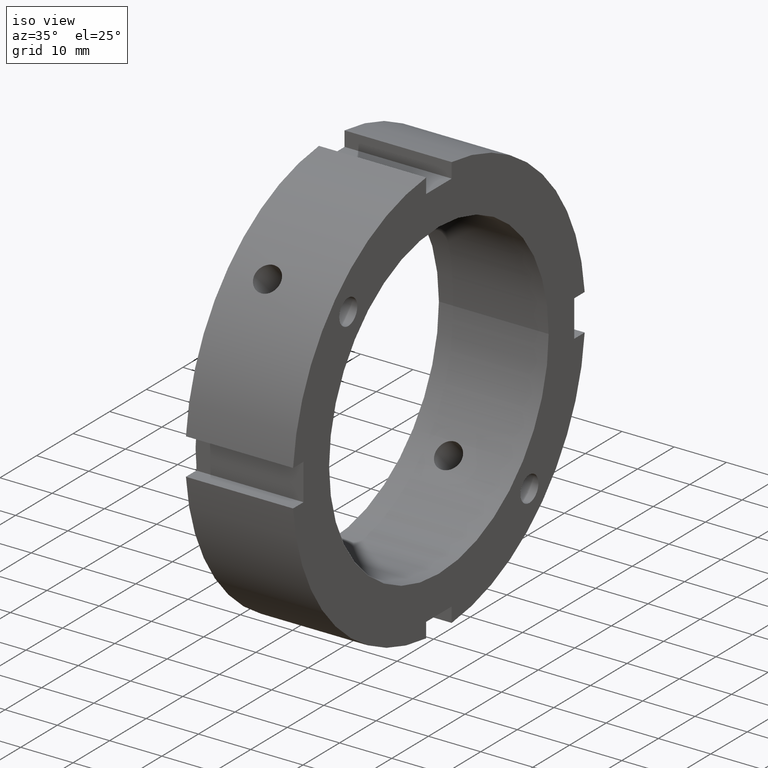
[diagram: clean part render]
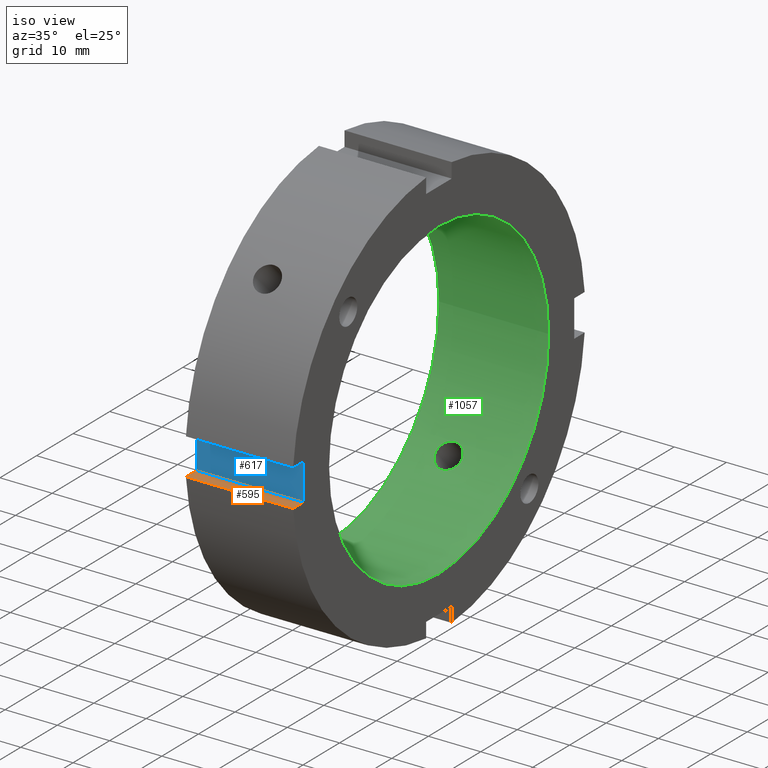
[diagram: same view with three faces highlighted in distinct colors, each labeled with its STEP entity id]
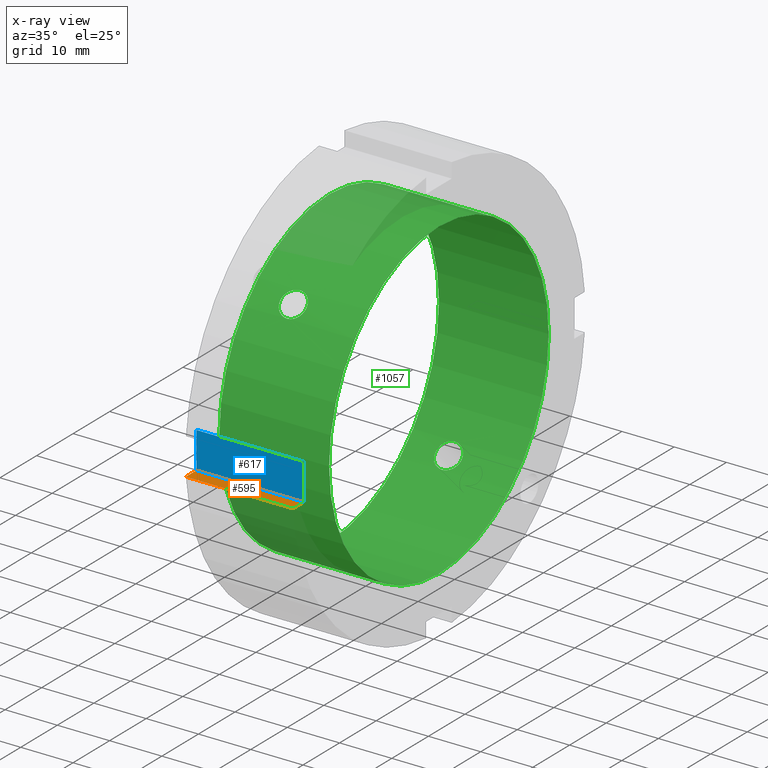
[diagram: x-ray of the same camera — body ghosted, the three highlighted faces saturated]
A machine part, iso view with three faces highlighted in distinct colors.
The next image is the same camera in x-ray (body ghosted, the three faces saturated) — at least one of them is partly hidden behind the body in this view.
Their STEP definitions:

[orange] entity #595 — the highlighted planar face has unit normal (0, 0, -1).
#556=CARTESIAN_POINT('',(20.999999999999986,-40.0,-3.499999999999994));
#557=DIRECTION('',(0.0,0.0,-1.0));
#558=DIRECTION('',(1.0,0.0,0.0));
#559=AXIS2_PLACEMENT_3D('',#556,#557,#558);
#560=PLANE('',#559);
#561=CARTESIAN_POINT('',(0.499999999999989,-39.846580781793556,-3.499999999999994));
#562=VERTEX_POINT('',#561);
#563=CARTESIAN_POINT('',(0.499999999999989,-37.0,-3.499999999999994));
#564=VERTEX_POINT('',#563);
#565=CARTESIAN_POINT('',(0.499999999999989,-39.846580781793548,-3.499999999999994));
#566=DIRECTION('',(0.0,1.0,0.0));
#567=VECTOR('',#566,2.846580781793549);
#568=LINE('',#565,#567);
#569=EDGE_CURVE('',#562,#564,#568,.T.);
#570=ORIENTED_EDGE('',*,*,#569,.F.);
#571=CARTESIAN_POINT('',(20.999999999999986,-39.846580781793563,-3.499999999999994));
#572=VERTEX_POINT('',#571);
#573=CARTESIAN_POINT('',(20.999999999999989,-39.846580781793563,-3.499999999999994));
#574=DIRECTION('',(-1.0,0.0,0.0));
#575=VECTOR('',#574,20.5);
#576=LINE('',#573,#575);
#577=EDGE_CURVE('',#572,#562,#576,.T.);
#578=ORIENTED_EDGE('',*,*,#577,.F.);
#579=CARTESIAN_POINT('',(20.999999999999986,-37.0,-3.499999999999994));
#580=VERTEX_POINT('',#579);
#581=CARTESIAN_POINT('',(20.999999999999986,-37.0,-3.499999999999994));
#582=DIRECTION('',(0.0,-1.0,0.0));
#583=VECTOR('',#582,2.846580781793563);
#584=LINE('',#581,#583);
#585=EDGE_CURVE('',#580,#572,#584,.T.);
#586=ORIENTED_EDGE('',*,*,#585,.F.);
#587=CARTESIAN_POINT('',(20.999999999999986,-37.0,-3.499999999999994));
#588=DIRECTION('',(-1.0,0.0,0.0));
#589=VECTOR('',#588,20.5);
#590=LINE('',#587,#589);
#591=EDGE_CURVE('',#580,#564,#590,.T.);
#592=ORIENTED_EDGE('',*,*,#591,.T.);
#593=EDGE_LOOP('',(#570,#578,#586,#592));
#594=FACE_OUTER_BOUND('',#593,.T.);
#595=ADVANCED_FACE('',(#594),#560,.F.);

[blue] entity #617 — the highlighted planar face has unit normal (0, 1, 0).
#521=CARTESIAN_POINT('',(0.499999999999989,-37.0,3.500000000000003));
#522=VERTEX_POINT('',#521);
#531=CARTESIAN_POINT('',(20.999999999999986,-37.0,3.500000000000003));
#532=VERTEX_POINT('',#531);
#533=CARTESIAN_POINT('',(20.999999999999986,-37.0,3.500000000000003));
#534=DIRECTION('',(-1.0,0.0,0.0));
#535=VECTOR('',#534,20.5);
#536=LINE('',#533,#535);
#537=EDGE_CURVE('',#532,#522,#536,.T.);
#563=CARTESIAN_POINT('',(0.499999999999989,-37.0,-3.499999999999994));
#564=VERTEX_POINT('',#563);
#579=CARTESIAN_POINT('',(20.999999999999986,-37.0,-3.499999999999994));
#580=VERTEX_POINT('',#579);
#587=CARTESIAN_POINT('',(20.999999999999986,-37.0,-3.499999999999994));
#588=DIRECTION('',(-1.0,0.0,0.0));
#589=VECTOR('',#588,20.5);
#590=LINE('',#587,#589);
#591=EDGE_CURVE('',#580,#564,#590,.T.);
#596=CARTESIAN_POINT('',(20.999999999999986,-37.0,-3.499999999999994));
#597=DIRECTION('',(0.0,1.0,0.0));
#598=DIRECTION('',(0.0,0.0,1.0));
#599=AXIS2_PLACEMENT_3D('',#596,#597,#598);
#600=PLANE('',#599);
#601=CARTESIAN_POINT('',(0.499999999999989,-37.0,-3.499999999999994));
#602=DIRECTION('',(0.0,0.0,1.0));
#603=VECTOR('',#602,6.999999999999997);
#604=LINE('',#601,#603);
#605=EDGE_CURVE('',#564,#522,#604,.T.);
#606=ORIENTED_EDGE('',*,*,#605,.F.);
#607=ORIENTED_EDGE('',*,*,#591,.F.);
#608=CARTESIAN_POINT('',(20.999999999999986,-37.0,3.500000000000003));
#609=DIRECTION('',(0.0,0.0,-1.0));
#610=VECTOR('',#609,6.999999999999996);
#611=LINE('',#608,#610);
#612=EDGE_CURVE('',#532,#580,#611,.T.);
#613=ORIENTED_EDGE('',*,*,#612,.F.);
#614=ORIENTED_EDGE('',*,*,#537,.T.);
#615=EDGE_LOOP('',(#606,#607,#613,#614));
#616=FACE_OUTER_BOUND('',#615,.T.);
#617=ADVANCED_FACE('',(#616),#600,.F.);

[green] entity #1057 — the highlighted cylindrical surface (bore or boss wall) has radius 30 mm, axis along (1, 0, 0).
#199=CARTESIAN_POINT('',(7.999999999999991,-22.907185109576073,19.371651203643335));
#200=VERTEX_POINT('',#199);
#201=CARTESIAN_POINT('',(7.999999999999991,-22.907185109576069,19.371651203643339));
#202=CARTESIAN_POINT('',(8.314062136681343,-22.907185109576069,19.371651203643339));
#203=CARTESIAN_POINT('',(8.64895820399304,-22.866642022119731,19.419913976315268));
#204=CARTESIAN_POINT('',(9.26486326711137,-22.700135798433298,19.614285888064625));
#205=CARTESIAN_POINT('',(9.545884679539965,-22.573976205629364,19.76018728529958));
#206=CARTESIAN_POINT('',(9.989648863222188,-22.278709901256093,20.092498307985139));
#207=CARTESIAN_POINT('',(10.182025315896423,-22.089853568551074,20.301066494923624));
#208=CARTESIAN_POINT('',(10.437204907844288,-21.668241122842026,20.750476094595165));
#209=CARTESIAN_POINT('',(10.499999999999991,-21.435278538670964,20.991128332521889));
#210=CARTESIAN_POINT('',(10.499999999999991,-20.991128332521885,21.435278538670968));
#211=CARTESIAN_POINT('',(10.43720490784429,-20.750476094595157,21.668241122842034));
#212=CARTESIAN_POINT('',(10.182025315896425,-20.301066494923617,22.089853568551089));
#213=CARTESIAN_POINT('',(9.98964886322219,-20.092498307985128,22.2787099012561));
#214=CARTESIAN_POINT('',(9.545884679539967,-19.760187285299565,22.573976205629364));
#215=CARTESIAN_POINT('',(9.264863267111375,-19.614285888064622,22.700135798433308));
#216=CARTESIAN_POINT('',(8.648958203993047,-19.419913976315261,22.866642022119738));
#217=CARTESIAN_POINT('',(8.314062136681343,-19.371651203643339,22.907185109576069));
#218=CARTESIAN_POINT('',(7.685937863318639,-19.371651203643339,22.907185109576069));
#219=CARTESIAN_POINT('',(7.351041796006939,-19.419913976315264,22.866642022119738));
#220=CARTESIAN_POINT('',(6.73513673288861,-19.614285888064622,22.700135798433308));
#221=CARTESIAN_POINT('',(6.454115320460017,-19.760187285299565,22.573976205629364));
#222=CARTESIAN_POINT('',(6.010351136777794,-20.092498307985124,22.278709901256097));
#223=CARTESIAN_POINT('',(5.817974684103558,-20.301066494923617,22.089853568551089));
#224=CARTESIAN_POINT('',(5.562795092155693,-20.750476094595154,21.668241122842034));
#225=CARTESIAN_POINT('',(5.499999999999991,-20.991128332521882,21.435278538670968));
#226=CARTESIAN_POINT('',(5.499999999999991,-21.435278538670964,20.991128332521889));
#227=CARTESIAN_POINT('',(5.562795092155694,-21.668241122842026,20.750476094595168));
#228=CARTESIAN_POINT('',(5.817974684103559,-22.089853568551074,20.301066494923624));
#229=CARTESIAN_POINT('',(6.010351136777794,-22.278709901256093,20.092498307985139));
#230=CARTESIAN_POINT('',(6.454115320460018,-22.573976205629364,19.760187285299583));
#231=CARTESIAN_POINT('',(6.735136732888614,-22.700135798433298,19.614285888064625));
#232=CARTESIAN_POINT('',(7.351041796006943,-22.866642022119731,19.419913976315271));
#233=CARTESIAN_POINT('',(7.685937863318639,-22.907185109576069,19.371651203643339));
#234=CARTESIAN_POINT('',(7.999999999999991,-22.907185109576069,19.371651203643339));
#235=B_SPLINE_CURVE_WITH_KNOTS('',3,(#201,#202,#203,#204,#205,#206,#207,#208,#209,#210,#211,#212,#213,#214,#215,#216,#217,#218,#219,#220,#221,#222,#223,#224,#225,#226,#227,#228,#229,#230,#231,#232,#233,#234),.UNSPECIFIED.,.T.,.U.,(4,2,2,2,2,2,2,2,2,2,2,2,2,2,2,2,4),(0.0,0.094218641004406,0.188437282008812,0.282655768798836,0.376874255588861,0.471092742378887,0.565311229168912,0.659529870173317,0.753748511177723,0.847967152182128,0.942185793186534,1.036404279976559,1.130622766766585,1.22484125355661,1.319059740346634,1.41327838135104,1.507497022355446),.UNSPECIFIED.);
#236=EDGE_CURVE('',#200,#200,#235,.T.);
#372=CARTESIAN_POINT('',(7.999999999999991,19.371651203643331,-22.907185109576076));
#373=VERTEX_POINT('',#372);
#374=CARTESIAN_POINT('',(7.999999999999991,19.371651203643331,-22.907185109576076));
#375=CARTESIAN_POINT('',(7.685937863318639,19.371651203643331,-22.907185109576076));
#376=CARTESIAN_POINT('',(7.351041796006936,19.419913976315261,-22.866642022119738));
#377=CARTESIAN_POINT('',(6.735136732888608,19.614285888064622,-22.700135798433308));
#378=CARTESIAN_POINT('',(6.454115320460017,19.760187285299565,-22.573976205629364));
#379=CARTESIAN_POINT('',(6.010351136777794,20.092498307985128,-22.2787099012561));
#380=CARTESIAN_POINT('',(5.817974684103558,20.301066494923617,-22.089853568551089));
#381=CARTESIAN_POINT('',(5.562795092155692,20.750476094595157,-21.668241122842034));
#382=CARTESIAN_POINT('',(5.499999999999991,20.991128332521885,-21.435278538670968));
#383=CARTESIAN_POINT('',(5.499999999999991,21.435278538670964,-20.991128332521889));
#384=CARTESIAN_POINT('',(5.562795092155696,21.668241122842026,-20.750476094595165));
#385=CARTESIAN_POINT('',(5.817974684103559,22.089853568551074,-20.301066494923624));
#386=CARTESIAN_POINT('',(6.010351136777794,22.278709901256093,-20.092498307985139));
#387=CARTESIAN_POINT('',(6.454115320460018,22.573976205629364,-19.76018728529958));
#388=CARTESIAN_POINT('',(6.735136732888611,22.700135798433298,-19.614285888064632));
#389=CARTESIAN_POINT('',(7.351041796006942,22.866642022119731,-19.419913976315271));
#390=CARTESIAN_POINT('',(7.685937863318639,22.907185109576069,-19.371651203643339));
#391=CARTESIAN_POINT('',(8.314062136681343,22.907185109576069,-19.371651203643339));
#392=CARTESIAN_POINT('',(8.64895820399304,22.866642022119731,-19.419913976315268));
#393=CARTESIAN_POINT('',(9.26486326711137,22.700135798433298,-19.614285888064625));
#394=CARTESIAN_POINT('',(9.545884679539965,22.573976205629364,-19.76018728529958));
#395=CARTESIAN_POINT('',(9.989648863222188,22.278709901256093,-20.092498307985139));
#396=CARTESIAN_POINT('',(10.182025315896423,22.089853568551074,-20.301066494923624));
#397=CARTESIAN_POINT('',(10.437204907844288,21.668241122842026,-20.750476094595165));
#398=CARTESIAN_POINT('',(10.499999999999991,21.435278538670964,-20.991128332521889));
#399=CARTESIAN_POINT('',(10.499999999999991,20.991128332521885,-21.435278538670968));
#400=CARTESIAN_POINT('',(10.43720490784429,20.750476094595157,-21.668241122842019));
#401=CARTESIAN_POINT('',(10.182025315896423,20.301066494923617,-22.089853568551074));
#402=CARTESIAN_POINT('',(9.98964886322219,20.092498307985128,-22.2787099012561));
#403=CARTESIAN_POINT('',(9.545884679539968,19.760187285299569,-22.573976205629368));
#404=CARTESIAN_POINT('',(9.264863267111371,19.614285888064622,-22.700135798433308));
#405=CARTESIAN_POINT('',(8.648958203993045,19.419913976315264,-22.866642022119738));
#406=CARTESIAN_POINT('',(8.314062136681343,19.371651203643331,-22.907185109576076));
#407=CARTESIAN_POINT('',(7.999999999999991,19.371651203643331,-22.907185109576076));
#408=B_SPLINE_CURVE_WITH_KNOTS('',3,(#374,#375,#376,#377,#378,#379,#380,#381,#382,#383,#384,#385,#386,#387,#388,#389,#390,#391,#392,#393,#394,#395,#396,#397,#398,#399,#400,#401,#402,#403,#404,#405,#406,#407),.UNSPECIFIED.,.T.,.U.,(4,2,2,2,2,2,2,2,2,2,2,2,2,2,2,2,4),(0.0,0.094218641004406,0.188437282008811,0.282655768798836,0.376874255588862,0.471092742378886,0.565311229168911,0.659529870173317,0.753748511177723,0.847967152182129,0.942185793186535,1.036404279976559,1.130622766766584,1.22484125355661,1.319059740346635,1.41327838135104,1.507497022355446),.UNSPECIFIED.);
#409=EDGE_CURVE('',#373,#373,#408,.T.);
#888=CARTESIAN_POINT('',(20.999999999999993,30.0,0.0));
#889=VERTEX_POINT('',#888);
#890=CARTESIAN_POINT('',(20.999999999999993,0.0,0.0));
#891=DIRECTION('',(1.0,0.0,0.0));
#892=DIRECTION('',(0.0,1.0,0.0));
#893=AXIS2_PLACEMENT_3D('',#890,#891,#892);
#894=CIRCLE('',#893,30.0);
#895=EDGE_CURVE('',#889,#889,#894,.T.);
#981=CARTESIAN_POINT('',(-8.291199E-015,30.0,0.0));
#982=VERTEX_POINT('',#981);
#983=CARTESIAN_POINT('',(-8.291978E-015,0.0,0.0));
#984=DIRECTION('',(1.0,0.0,0.0));
#985=DIRECTION('',(0.0,1.0,0.0));
#986=AXIS2_PLACEMENT_3D('',#983,#984,#985);
#987=CIRCLE('',#986,30.0);
#988=EDGE_CURVE('',#982,#982,#987,.T.);
#1040=CARTESIAN_POINT('',(10.499999999999991,0.0,0.0));
#1041=DIRECTION('',(1.0,0.0,0.0));
#1042=DIRECTION('',(0.0,1.0,0.0));
#1043=AXIS2_PLACEMENT_3D('',#1040,#1041,#1042);
#1044=CYLINDRICAL_SURFACE('',#1043,30.0);
#1045=ORIENTED_EDGE('',*,*,#988,.F.);
#1046=EDGE_LOOP('',(#1045));
#1047=FACE_OUTER_BOUND('',#1046,.T.);
#1048=ORIENTED_EDGE('',*,*,#236,.T.);
#1049=EDGE_LOOP('',(#1048));
#1050=FACE_BOUND('',#1049,.T.);
#1051=ORIENTED_EDGE('',*,*,#409,.T.);
#1052=EDGE_LOOP('',(#1051));
#1053=FACE_BOUND('',#1052,.T.);
#1054=ORIENTED_EDGE('',*,*,#895,.T.);
#1055=EDGE_LOOP('',(#1054));
#1056=FACE_BOUND('',#1055,.T.);
#1057=ADVANCED_FACE('',(#1047,#1050,#1053,#1056),#1044,.F.);